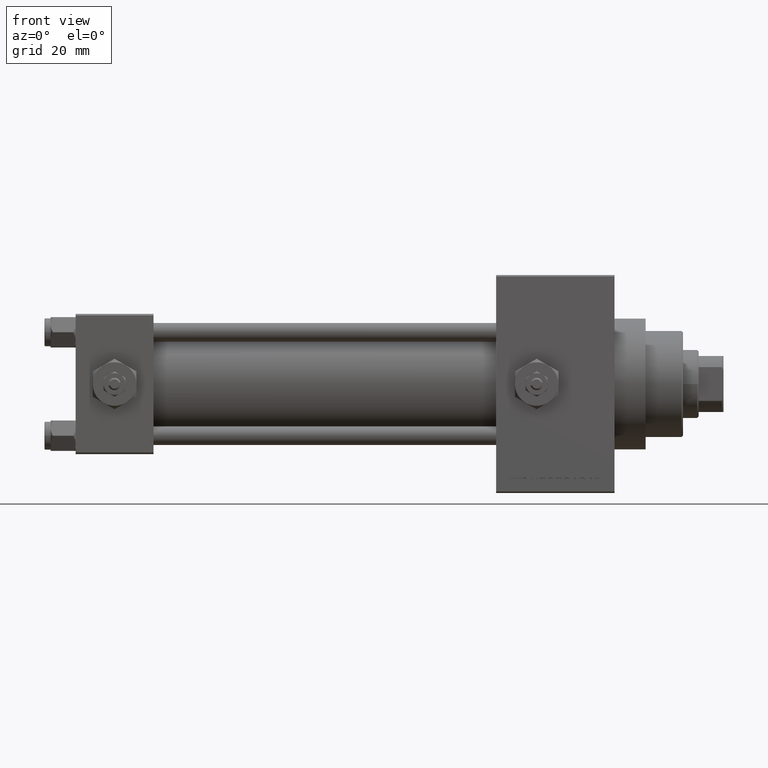
[diagram: clean part render]
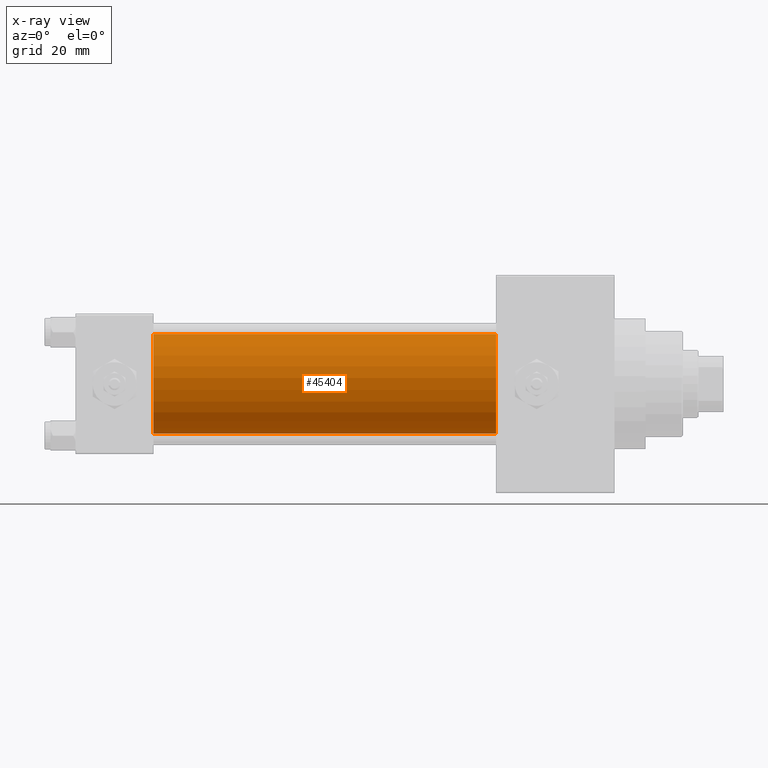
[diagram: x-ray — body ghosted, one internal face saturated and labeled with its STEP entity id]
A machine part, front view, then the same camera in x-ray: the body is ghosted and one INTERNAL B-rep face — a face not visible from any outside direction — is saturated and labeled: STEP entity #45404.
In plain terms, the highlighted cylindrical surface (partial cylindrical patch) has radius 16 mm, axis along (-1, -0, -0).
Its self-contained STEP definition (entity closure, byte-faithful):
#464 = CARTESIAN_POINT ( 'NONE',  ( 135.0000000000000000, -2.602085213965210642E-15, 0.000000000000000000 ) ) ;
#712 = DIRECTION ( 'NONE',  ( -1.000000000000000000, -0.000000000000000000, -0.000000000000000000 ) ) ;
#728 = ORIENTED_EDGE ( 'NONE', *, *, #3021, .F. ) ;
#957 = DIRECTION ( 'NONE',  ( -1.000000000000000000, -0.000000000000000000, -0.000000000000000000 ) ) ;
#1451 = LINE ( 'NONE', #4443, #6490 ) ;
#2122 = LINE ( 'NONE', #47082, #19950 ) ;
#3021 = EDGE_CURVE ( 'NONE', #33490, #36316, #1451, .T. ) ;
#4192 = DIRECTION ( 'NONE',  ( 0.000000000000000000, 0.000000000000000000, 1.000000000000000000 ) ) ;
#4443 = CARTESIAN_POINT ( 'NONE',  ( 135.0000000000000000, -2.602085213965210642E-15, 16.00000000000000000 ) ) ;
#6490 = VECTOR ( 'NONE', #712, 1000.000000000000000 ) ;
#10852 = DIRECTION ( 'NONE',  ( 0.000000000000000000, 0.000000000000000000, -1.000000000000000000 ) ) ;
#11600 = DIRECTION ( 'NONE',  ( 1.000000000000000000, 0.000000000000000000, 0.000000000000000000 ) ) ;
#13082 = DIRECTION ( 'NONE',  ( -1.000000000000000000, -0.000000000000000000, -0.000000000000000000 ) ) ;
#13252 = DIRECTION ( 'NONE',  ( 0.000000000000000000, 0.000000000000000000, -1.000000000000000000 ) ) ;
#13602 = CARTESIAN_POINT ( 'NONE',  ( 25.00000000000000000, -2.602085213965210642E-15, 16.00000000000000000 ) ) ;
#18202 = CARTESIAN_POINT ( 'NONE',  ( 135.0000000000000000, -2.602085213965210642E-15, 16.00000000000000000 ) ) ;
#19950 = VECTOR ( 'NONE', #13082, 1000.000000000000000 ) ;
#24249 = EDGE_CURVE ( 'NONE', #39466, #30590, #2122, .T. ) ;
#24806 = CIRCLE ( 'NONE', #31176, 16.00000000000000000 ) ;
#25438 = CARTESIAN_POINT ( 'NONE',  ( 25.00000000000000000, -6.426503353294456087E-16, -16.00000000000000000 ) ) ;
#25644 = CIRCLE ( 'NONE', #37520, 16.00000000000000000 ) ;
#25976 = CARTESIAN_POINT ( 'NONE',  ( 135.0000000000000000, -2.602085213965210642E-15, 0.000000000000000000 ) ) ;
#27789 = ORIENTED_EDGE ( 'NONE', *, *, #48515, .T. ) ;
#28304 = EDGE_LOOP ( 'NONE', ( #27789, #46031, #37432, #728 ) ) ;
#28877 = DIRECTION ( 'NONE',  ( 1.000000000000000000, 0.000000000000000000, 0.000000000000000000 ) ) ;
#30590 = VERTEX_POINT ( 'NONE', #25438 ) ;
#31176 = AXIS2_PLACEMENT_3D ( 'NONE', #25976, #11600, #10852 ) ;
#31794 = EDGE_CURVE ( 'NONE', #36316, #30590, #25644, .T. ) ;
#33490 = VERTEX_POINT ( 'NONE', #18202 ) ;
#36316 = VERTEX_POINT ( 'NONE', #13602 ) ;
#37432 = ORIENTED_EDGE ( 'NONE', *, *, #31794, .F. ) ;
#37520 = AXIS2_PLACEMENT_3D ( 'NONE', #47756, #28877, #13252 ) ;
#39466 = VERTEX_POINT ( 'NONE', #44992 ) ;
#39762 = AXIS2_PLACEMENT_3D ( 'NONE', #464, #957, #4192 ) ;
#44992 = CARTESIAN_POINT ( 'NONE',  ( 135.0000000000000000, -6.426503353294456087E-16, -16.00000000000000000 ) ) ;
#45404 = ADVANCED_FACE ( 'NONE', ( #49157 ), #45692, .F. ) ;
#45692 = CYLINDRICAL_SURFACE ( 'NONE', #39762, 16.00000000000000000 ) ;
#46031 = ORIENTED_EDGE ( 'NONE', *, *, #24249, .T. ) ;
#47082 = CARTESIAN_POINT ( 'NONE',  ( 135.0000000000000000, -6.426503353294456087E-16, -16.00000000000000000 ) ) ;
#47756 = CARTESIAN_POINT ( 'NONE',  ( 25.00000000000000000, -2.602085213965210642E-15, 0.000000000000000000 ) ) ;
#48515 = EDGE_CURVE ( 'NONE', #33490, #39466, #24806, .T. ) ;
#49157 = FACE_OUTER_BOUND ( 'NONE', #28304, .T. ) ;